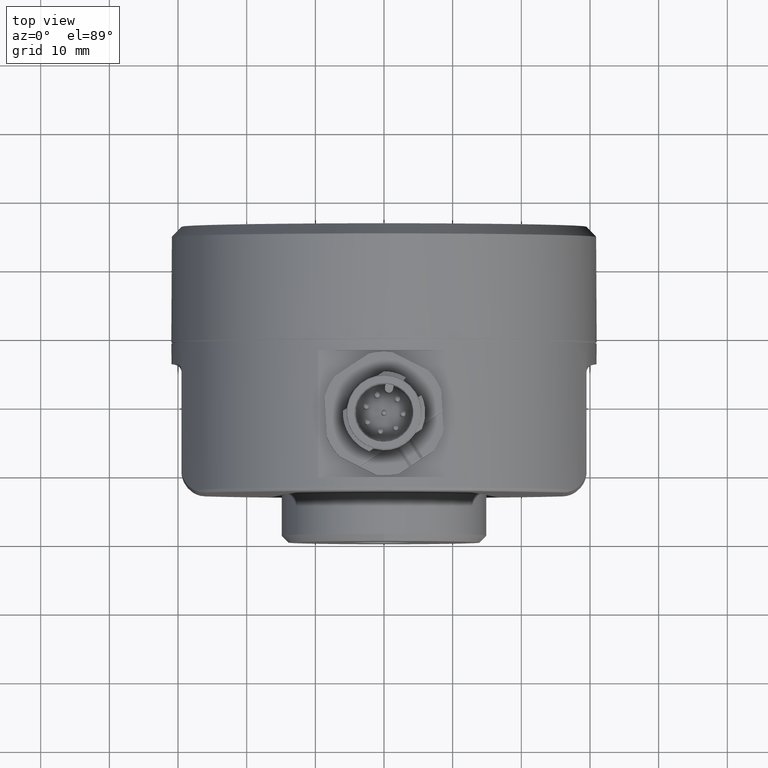
[diagram: clean part render]
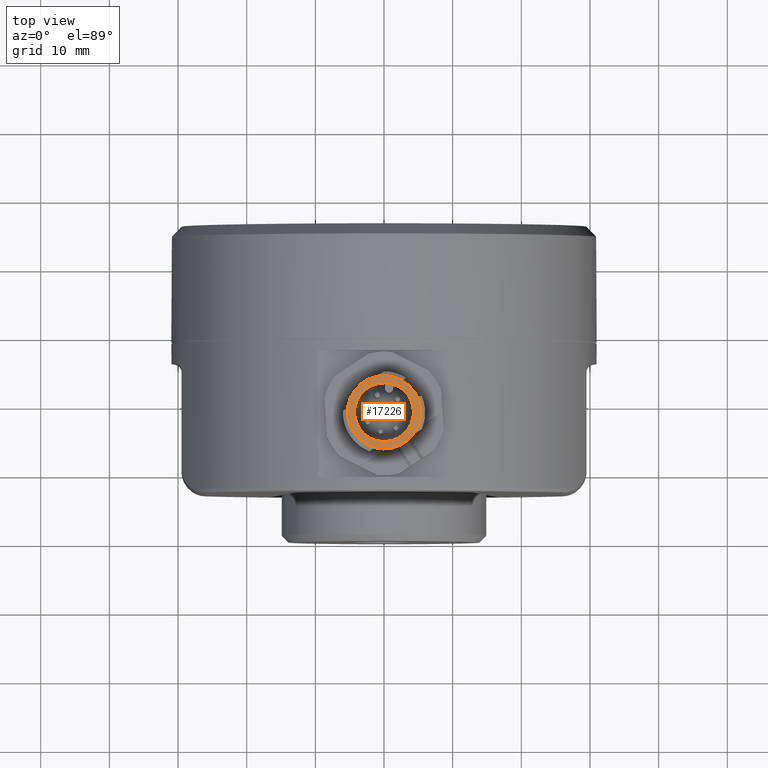
[diagram: same view with one face highlighted and labeled with its STEP entity id]
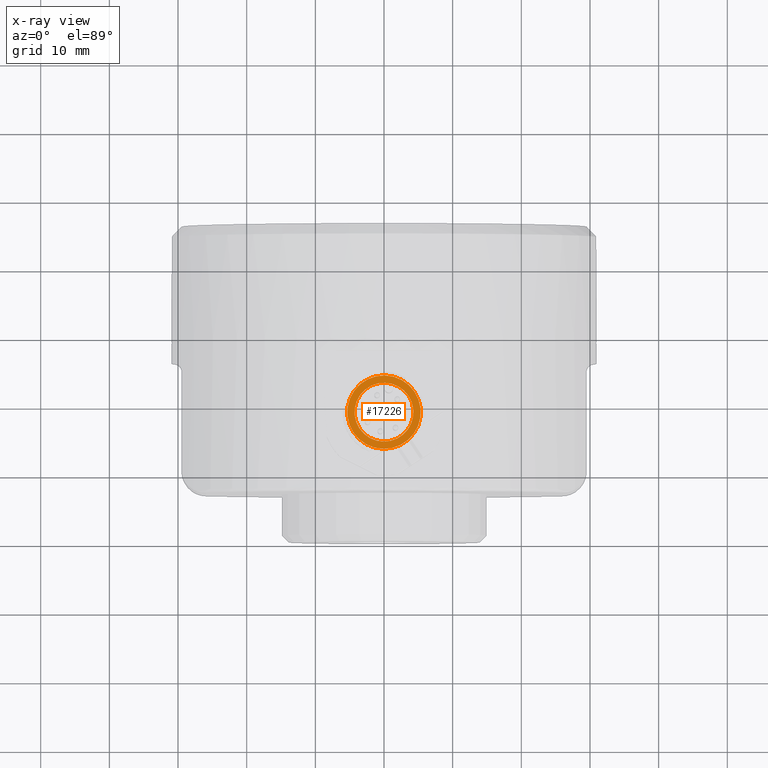
[diagram: x-ray of the same camera — body ghosted, the highlighted face saturated]
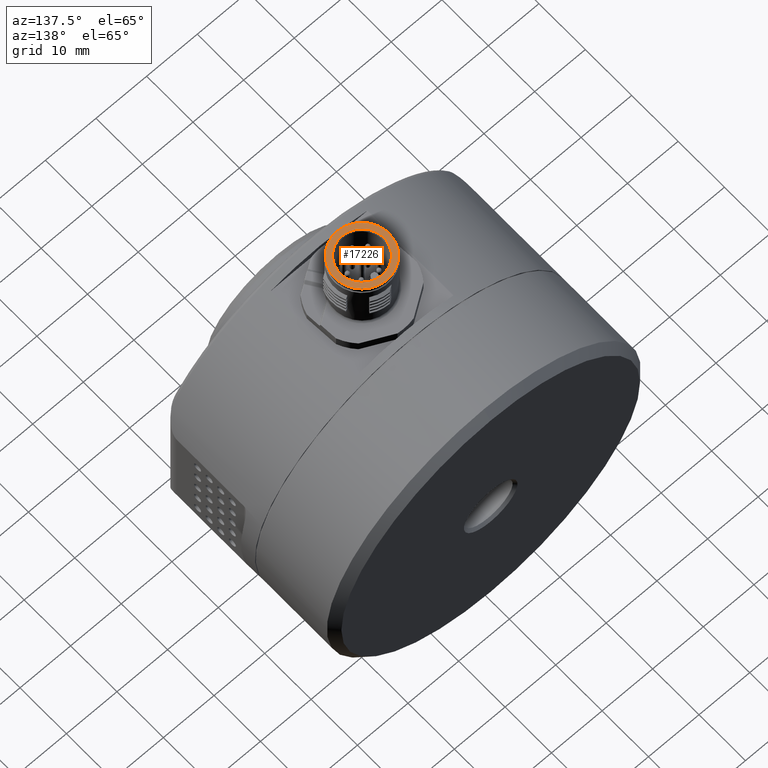
[diagram: same view with one face highlighted and labeled with its STEP entity id]
A machine part, top view. The second image highlights one B-rep face of the part: STEP entity #17226.
The next image is the same camera in x-ray: the body ghosted, the highlighted face saturated — about 0% of this face is hidden behind the body in this view.
A second angle (auxiliary view) of the same face is appended — the face is thin or edge-on in the first view.
In plain terms, the highlighted planar face has unit normal (0, 0, 1).
Its self-contained STEP definition (entity closure, byte-faithful):
#900 = CARTESIAN_POINT ( 'NONE',  ( 3.573487718401246571, 20.61276284002635606, 42.45000257950319877 ) ) ;
#995 = VERTEX_POINT ( 'NONE', #16766 ) ;
#1151 = ORIENTED_EDGE ( 'NONE', *, *, #5909, .T. ) ;
#1897 = DIRECTION ( 'NONE',  ( 5.407798600383800764E-17, 3.045375705135857803E-17, 1.000000000000000000 ) ) ;
#2391 = DIRECTION ( 'NONE',  ( 0.8341518525552417129, 0.5515348464772269477, 0.000000000000000000 ) ) ;
#2845 = DIRECTION ( 'NONE',  ( 0.8341518525552411578, 0.5515348464772277248, 0.000000000000000000 ) ) ;
#3034 = CARTESIAN_POINT ( 'NONE',  ( -2.839967616310404768E-15, 18.24999999999999645, 42.45000257947000222 ) ) ;
#3218 = FACE_BOUND ( 'NONE', #16719, .T. ) ;
#4149 = CIRCLE ( 'NONE', #13454, 5.350000000000003197 ) ;
#5909 = EDGE_CURVE ( 'NONE', #10752, #10752, #7351, .T. ) ;
#6641 = EDGE_LOOP ( 'NONE', ( #12419 ) ) ;
#7351 = CIRCLE ( 'NONE', #13648, 4.283977440623838007 ) ;
#7438 = DIRECTION ( 'NONE',  ( 5.407798600383801380E-17, 3.045375705135858419E-17, 1.000000000000000000 ) ) ;
#9205 = CARTESIAN_POINT ( 'NONE',  ( -2.839967616310404768E-15, 18.24999999999999645, 42.45000257947000222 ) ) ;
#10752 = VERTEX_POINT ( 'NONE', #900 ) ;
#12029 = FACE_OUTER_BOUND ( 'NONE', #6641, .T. ) ;
#12377 = EDGE_CURVE ( 'NONE', #995, #995, #4149, .T. ) ;
#12419 = ORIENTED_EDGE ( 'NONE', *, *, #12377, .T. ) ;
#13454 = AXIS2_PLACEMENT_3D ( 'NONE', #3034, #7438, #2845 ) ;
#13534 = PLANE ( 'NONE',  #18345 ) ;
#13648 = AXIS2_PLACEMENT_3D ( 'NONE', #15260, #16573, #2391 ) ;
#15260 = CARTESIAN_POINT ( 'NONE',  ( 9.621682446038742201E-15, 18.24999999999998579, 42.45000257950319877 ) ) ;
#16573 = DIRECTION ( 'NONE',  ( -5.407798600383801380E-17, -3.045375705135858419E-17, -1.000000000000000000 ) ) ;
#16719 = EDGE_LOOP ( 'NONE', ( #1151 ) ) ;
#16766 = CARTESIAN_POINT ( 'NONE',  ( 4.462712411170540072, 21.20071142865316460, 42.45000257947000222 ) ) ;
#17226 = ADVANCED_FACE ( 'NONE', ( #3218, #12029 ), #13534, .T. ) ;
#17585 = DIRECTION ( 'NONE',  ( 0.8341518525552412688, 0.5515348464772275028, -6.190556042753372094E-17 ) ) ;
#18345 = AXIS2_PLACEMENT_3D ( 'NONE', #9205, #1897, #17585 ) ;